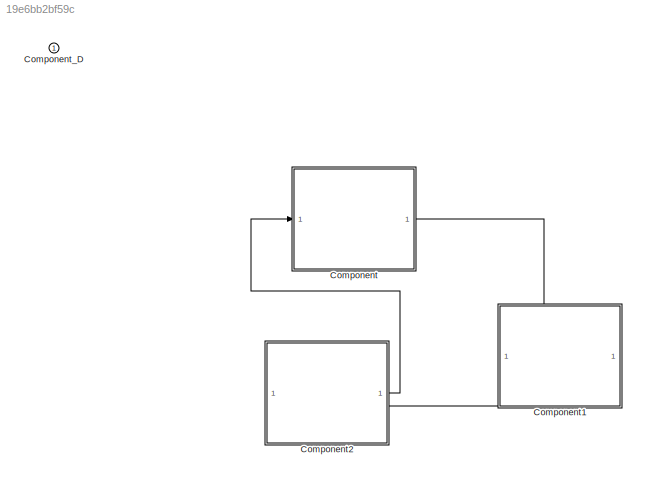
MODEL slx_19e6bb2bf59c
KIND model
CONFIG AbsTol = auto
CONFIG EnableMultiTasking = off
CONFIG FixedStep = auto
CONFIG MaxStep = auto
CONFIG MinStep = auto
CONFIG RelTol = 1e-3
CONFIG SampleTimeConstraint = Unconstrained
CONFIG SolverName = FixedStepDiscrete
CONFIG StartTime = 0.0
CONFIG StopTime = 10.0
BLOCK [ModelReference] Component
  ModelEventPortInfo = P:D1[-2][0][0]
  ModelNameDialog = Component_1
  ModelReferenceVersion = 1.2
  PortSchema = {"entries":[{"content":{"headerSize":38,"margin":15,"minimumSpacing":25,"sides":[{"content":{"connectorIds":["In1"]},"type":"ConnectorPlacement.EquallySpacedRectSide","uuid":"30c282d5-1b70-4352-aa58-9b273f67781a"},{"content":{"connectorIds":["Out1"],"side":"RIGHT"},"type":"ConnectorPlacement.EquallySpacedRectSide","uuid":"86ff41a1-9909-4d6d-8af3-93663d3dc2ec"},{"content":{"connectorIds":[],"side":...<+437ch>
  ScheduleRates = on
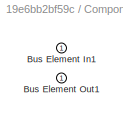
BLOCK [SubSystem] Component1
  PortSchema = {"entries":[{"content":{"headerSize":26,"margin":15,"minimumSpacing":25,"sides":[{"content":{"connectorIds":[]},"type":"ConnectorPlacement.EquallySpacedRectSide","uuid":"30c282d5-1b70-4352-aa58-9b273f67781a"},{"content":{"connectorIds":[],"side":"RIGHT"},"type":"ConnectorPlacement.EquallySpacedRectSide","uuid":"86ff41a1-9909-4d6d-8af3-93663d3dc2ec"},{"content":{"connectorIds":["In1"],"side":"TOP"}...<+432ch>
BLOCK [Inport] Component1/Bus Element In1
BLOCK [Outport] Component1/Bus Element Out1
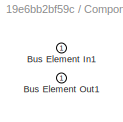
BLOCK [SubSystem] Component2
  PortSchema = {"entries":[{"content":{"headerSize":26,"margin":15,"minimumSpacing":25,"sides":[{"content":{"connectorIds":["In1"]},"type":"ConnectorPlacement.EquallySpacedRectSide","uuid":"30c282d5-1b70-4352-aa58-9b273f67781a"},{"content":{"connectorIds":["Out1"],"side":"RIGHT"},"type":"ConnectorPlacement.EquallySpacedRectSide","uuid":"86ff41a1-9909-4d6d-8af3-93663d3dc2ec"},{"content":{"connectorIds":[],"side":...<+288ch>
BLOCK [Inport] Component2/Bus Element In1
BLOCK [Outport] Component2/Bus Element Out1
BLOCK [Inport] Component_D
  OutputFunctionCall = on
LINE Component1:1 -> Component2:1
LINE Component2:1 -> Component:1
LINE Component:1 -> Component1:1
